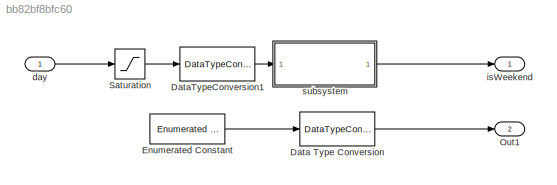
MODEL slx_bb82bf8bfc60
KIND model
CONFIG AbsTol = auto
CONFIG EnableMultiTasking = off
CONFIG FixedStep = 1.000000
CONFIG MaxStep = auto
CONFIG MinStep = auto
CONFIG RelTol = 1e-3
CONFIG SampleTimeConstraint = Unconstrained
CONFIG Solver = FixedStepDiscrete
CONFIG SolverName = FixedStepDiscrete
CONFIG StartTime = 0.0
CONFIG StopTime = 10.0
WORKSPACE source: MAT-file member
WORKSPACE MCOS: class17 (value not decoded)
BLOCK [DataTypeConversion] Data Type Conversion
  OutDataTypeStr = int8
  RndMeth = Floor
  SaturateOnIntegerOverflow = off
BLOCK [DataTypeConversion] DataTypeConversion1
  OutDataTypeStr = Enum: Days
  RndMeth = Floor
  SaturateOnIntegerOverflow = off
BLOCK [Reference] Enumerated Constant  REF=simulink/Sources/Enumerated
Constant
  Ports = [0, 1]
  SourceBlock = simulink/Sources/Enumerated\nConstant
  SourceProductBaseCode = SL
  SourceProductName = Simulink
  SourceType = Enumerated Constant
BLOCK [Outport] Out1
  IconDisplay = Port number
  Port = 2
BLOCK [Saturate] Saturation
  InputPortMap = u0
  LowerLimit = 1
  OutDataTypeStr = uint8
  Ports = [1, 1]
  UpperLimit = 7
BLOCK [Inport] day
  IconDisplay = Port number
  OutDataTypeStr = uint8
  OutMax = 7
  OutMin = 1
BLOCK [Outport] isWeekend
  IconDisplay = Port number
  OutDataTypeStr = boolean
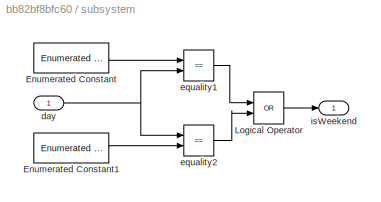
BLOCK [SubSystem] subsystem
  Ports = [1, 1]
  RequestExecContextInheritance = off
  Variant = off
BLOCK [Reference] subsystem/Enumerated Constant  REF=simulink/Sources/Enumerated
Constant
  Ports = [0, 1]
  SourceBlock = simulink/Sources/Enumerated\nConstant
  SourceProductBaseCode = SL
  SourceProductName = Simulink
  SourceType = Enumerated Constant
BLOCK [Reference] subsystem/Enumerated Constant1  REF=simulink/Sources/Enumerated
Constant
  Ports = [0, 1]
  SourceBlock = simulink/Sources/Enumerated\nConstant
  SourceProductBaseCode = SL
  SourceProductName = Simulink
  SourceType = Enumerated Constant
BLOCK [Logic] subsystem/Logical Operator
  AllPortsSameDT = off
  IconShape = distinctive
  Operator = OR
  OutDataTypeStr = boolean
  Ports = [2, 1]
BLOCK [Inport] subsystem/day
  IconDisplay = Port number
  OutDataTypeStr = Enum: Days
BLOCK [RelationalOperator] subsystem/equality1
  InputSameDT = off
  Operator = ==
  OutDataTypeStr = boolean
  Ports = [2, 1]
  RndMeth = Simplest
BLOCK [RelationalOperator] subsystem/equality2
  InputSameDT = off
  Operator = ==
  OutDataTypeStr = boolean
  Ports = [2, 1]
  RndMeth = Simplest
BLOCK [Outport] subsystem/isWeekend
  IconDisplay = Port number
  OutDataTypeStr = boolean
LINE Data Type Conversion:1 -> Out1:1
LINE DataTypeConversion1:1 -> subsystem:1
LINE Enumerated Constant:1 -> Data Type Conversion:1
LINE Saturation:1 -> DataTypeConversion1:1
LINE day:1 -> Saturation:1
LINE subsystem/Enumerated Constant1:1 -> subsystem/equality2:2
LINE subsystem/Enumerated Constant:1 -> subsystem/equality1:1
LINE subsystem/Logical Operator:1 -> subsystem/isWeekend:1
NET subsystem/day:1 -> subsystem/equality1:2, subsystem/equality2:1
LINE subsystem/equality1:1 -> subsystem/Logical Operator:1
LINE subsystem/equality2:1 -> subsystem/Logical Operator:2
LINE subsystem:1 -> isWeekend:1
note: NET lines group one-source signal fan-out (src -> all destinations, sorted); 1:1 wires keep LINE
